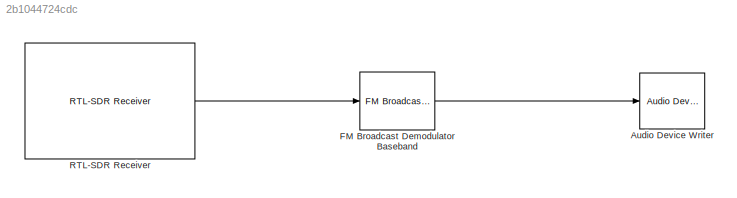
MODEL slx_2b1044724cdc
KIND model
CONFIG AbsTol = auto
CONFIG EnableMultiTasking = off
CONFIG FixedStep = auto
CONFIG MaxStep = auto
CONFIG MinStep = auto
CONFIG RelTol = 1e-3
CONFIG SampleTimeConstraint = Unconstrained
CONFIG SolverName = VariableStepAuto
CONFIG StartTime = 0.0
CONFIG StopTime = 10.0
BLOCK [Reference] Audio Device Writer  REF=dspsnks4/Audio Device
Writer
  SourceBlock = dspsnks4/Audio Device\nWriter
  SourceType = Audio Device Writer
BLOCK [Reference] FM Broadcast Demodulator Baseband  REF=commanabbnd3/FM Broadcast
Demodulator
Baseband
  SourceBlock = commanabbnd3/FM Broadcast\nDemodulator\nBaseband
  SourceType = FM Broadcast Demodulator Baseband
BLOCK [Reference] RTL-SDR Receiver  REF=sdrrlib/RTL-SDR
Receiver
  SourceBlock = sdrrlib/RTL-SDR\nReceiver
  SourceType = RTL-SDR Receiver
LINE FM Broadcast Demodulator Baseband:1 -> Audio Device Writer:1
LINE RTL-SDR Receiver:1 -> FM Broadcast Demodulator Baseband:1
